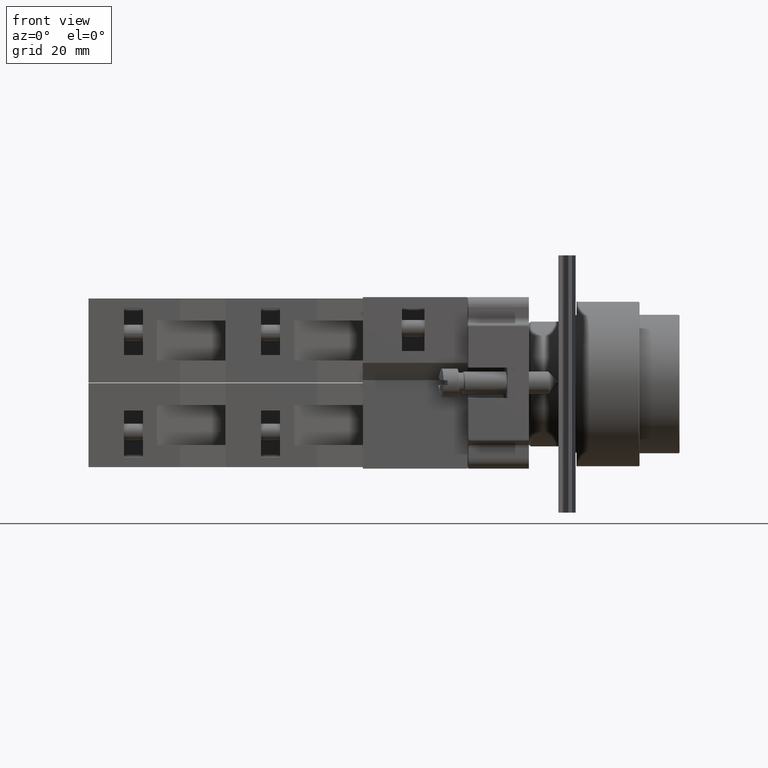
[diagram: clean part render]
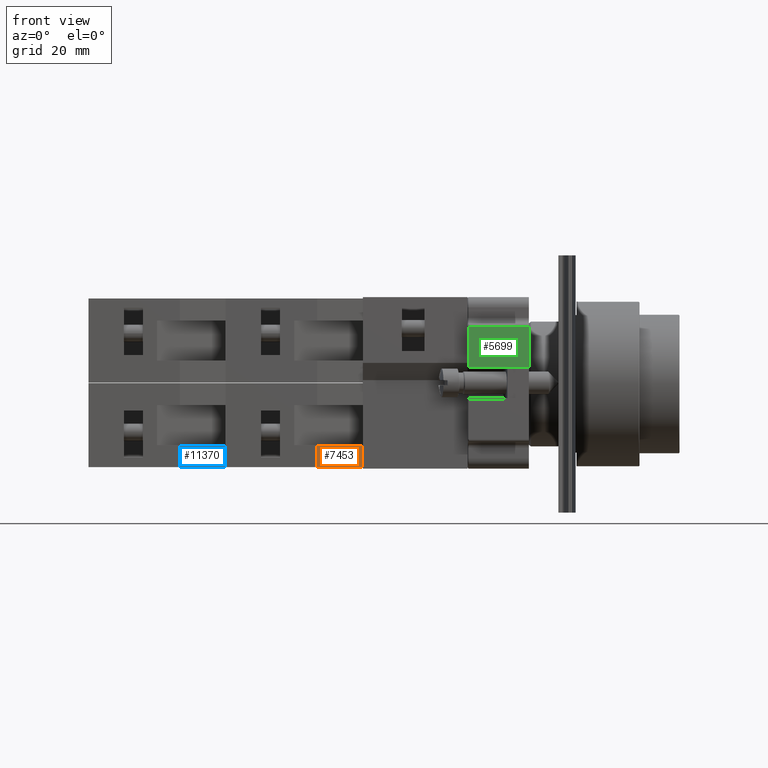
[diagram: same view with three faces highlighted in distinct colors, each labeled with its STEP entity id]
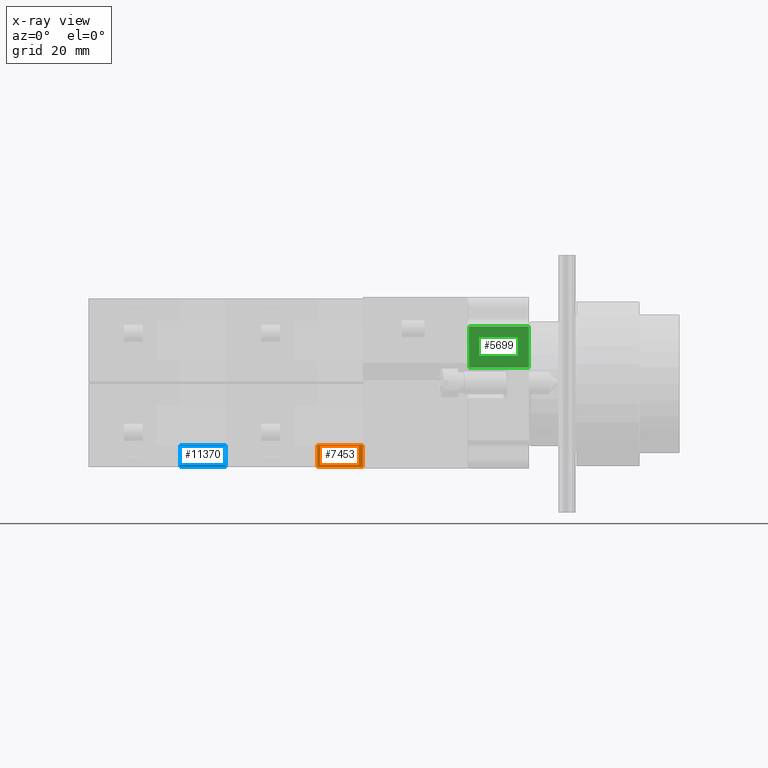
[diagram: x-ray of the same camera — body ghosted, the three highlighted faces saturated]
A machine part, front view with three faces highlighted in distinct colors.
The next image is the same camera in x-ray (body ghosted, the three faces saturated) — at least one of them is partly hidden behind the body in this view.
Their STEP definitions:

[orange] entity #7453 — the highlighted planar face has unit normal (0.1843, -0.9829, 0).
#7215=CARTESIAN_POINT('',(-17.436741828918457,-0.202926676720378,10.850000000000000));
#7216=VERTEX_POINT('',#7215);
#7217=CARTESIAN_POINT('',(-15.936741828918466,7.797073323279626,10.850000000000000));
#7218=VERTEX_POINT('',#7217);
#7219=CARTESIAN_POINT('',(-17.436741828918457,-0.202926676720378,10.850000000000000));
#7220=DIRECTION('',(0.184288535050184,0.982872186934322,0.0));
#7221=VECTOR('',#7220,8.139410298049855);
#7222=LINE('',#7219,#7221);
#7223=EDGE_CURVE('',#7216,#7218,#7222,.T.);
#7343=CARTESIAN_POINT('',(-17.436741828918457,-0.202926676720377,14.699999999999999));
#7344=VERTEX_POINT('',#7343);
#7345=CARTESIAN_POINT('',(-17.436741828918457,-0.202926676720378,10.850000000000000));
#7346=DIRECTION('',(0.0,0.0,1.0));
#7347=VECTOR('',#7346,3.850000000000000);
#7348=LINE('',#7345,#7347);
#7349=EDGE_CURVE('',#7216,#7344,#7348,.T.);
#7430=CARTESIAN_POINT('',(-15.936741828918466,7.797073323279626,0.0));
#7431=DIRECTION('',(0.982872186934322,-0.184288535050184,0.0));
#7432=DIRECTION('',(0.0,0.0,-1.0));
#7433=AXIS2_PLACEMENT_3D('',#7430,#7431,#7432);
#7434=PLANE('',#7433);
#7435=ORIENTED_EDGE('',*,*,#7223,.T.);
#7436=CARTESIAN_POINT('',(-15.936741828918466,7.797073323279626,14.699999999999999));
#7437=VERTEX_POINT('',#7436);
#7438=CARTESIAN_POINT('',(-15.936741828918466,7.797073323279626,10.850000000000000));
#7439=DIRECTION('',(0.0,0.0,1.0));
#7440=VECTOR('',#7439,3.850000000000000);
#7441=LINE('',#7438,#7440);
#7442=EDGE_CURVE('',#7218,#7437,#7441,.T.);
#7443=ORIENTED_EDGE('',*,*,#7442,.T.);
#7444=CARTESIAN_POINT('',(-15.936741828918466,7.797073323279626,14.699999999999999));
#7445=DIRECTION('',(-0.184288535050184,-0.982872186934322,0.0));
#7446=VECTOR('',#7445,8.139410298049855);
#7447=LINE('',#7444,#7446);
#7448=EDGE_CURVE('',#7437,#7344,#7447,.T.);
#7449=ORIENTED_EDGE('',*,*,#7448,.T.);
#7450=ORIENTED_EDGE('',*,*,#7349,.F.);
#7451=EDGE_LOOP('',(#7435,#7443,#7449,#7450));
#7452=FACE_OUTER_BOUND('',#7451,.T.);
#7453=ADVANCED_FACE('',(#7452),#7434,.T.);

[blue] entity #11370 — the highlighted planar face has unit normal (0.1843, -0.9829, -0).
#11132=CARTESIAN_POINT('',(-17.436741828918457,-0.202926676720378,10.850000000000000));
#11133=VERTEX_POINT('',#11132);
#11134=CARTESIAN_POINT('',(-15.936741828918466,7.797073323279626,10.850000000000000));
#11135=VERTEX_POINT('',#11134);
#11136=CARTESIAN_POINT('',(-17.436741828918457,-0.202926676720378,10.850000000000000));
#11137=DIRECTION('',(0.184288535050184,0.982872186934322,0.0));
#11138=VECTOR('',#11137,8.139410298049855);
#11139=LINE('',#11136,#11138);
#11140=EDGE_CURVE('',#11133,#11135,#11139,.T.);
#11260=CARTESIAN_POINT('',(-17.436741828918457,-0.202926676720377,14.699999999999999));
#11261=VERTEX_POINT('',#11260);
#11262=CARTESIAN_POINT('',(-17.436741828918457,-0.202926676720378,10.850000000000000));
#11263=DIRECTION('',(0.0,0.0,1.0));
#11264=VECTOR('',#11263,3.850000000000000);
#11265=LINE('',#11262,#11264);
#11266=EDGE_CURVE('',#11133,#11261,#11265,.T.);
#11347=CARTESIAN_POINT('',(-15.936741828918466,7.797073323279626,0.0));
#11348=DIRECTION('',(0.982872186934322,-0.184288535050184,0.0));
#11349=DIRECTION('',(0.0,0.0,-1.0));
#11350=AXIS2_PLACEMENT_3D('',#11347,#11348,#11349);
#11351=PLANE('',#11350);
#11352=ORIENTED_EDGE('',*,*,#11140,.T.);
#11353=CARTESIAN_POINT('',(-15.936741828918466,7.797073323279626,14.699999999999999));
#11354=VERTEX_POINT('',#11353);
#11355=CARTESIAN_POINT('',(-15.936741828918466,7.797073323279626,10.850000000000000));
#11356=DIRECTION('',(0.0,0.0,1.0));
#11357=VECTOR('',#11356,3.850000000000000);
#11358=LINE('',#11355,#11357);
#11359=EDGE_CURVE('',#11135,#11354,#11358,.T.);
#11360=ORIENTED_EDGE('',*,*,#11359,.T.);
#11361=CARTESIAN_POINT('',(-15.936741828918466,7.797073323279626,14.699999999999999));
#11362=DIRECTION('',(-0.184288535050184,-0.982872186934322,0.0));
#11363=VECTOR('',#11362,8.139410298049855);
#11364=LINE('',#11361,#11363);
#11365=EDGE_CURVE('',#11354,#11261,#11364,.T.);
#11366=ORIENTED_EDGE('',*,*,#11365,.T.);
#11367=ORIENTED_EDGE('',*,*,#11266,.F.);
#11368=EDGE_LOOP('',(#11352,#11360,#11366,#11367));
#11369=FACE_OUTER_BOUND('',#11368,.T.);
#11370=ADVANCED_FACE('',(#11369),#11351,.T.);

[green] entity #5699 — the highlighted planar face has unit normal (0, -1, -0).
#673=CARTESIAN_POINT('',(-18.982780308276109,0.267864828157553,10.500000000000000));
#674=VERTEX_POINT('',#673);
#727=CARTESIAN_POINT('',(-18.982780308276109,7.467864828157554,10.500000000000000));
#728=VERTEX_POINT('',#727);
#729=CARTESIAN_POINT('',(-18.982780308276109,7.467864828157554,10.500000000000000));
#730=DIRECTION('',(0.0,-1.0,0.0));
#731=VECTOR('',#730,7.200000000000001);
#732=LINE('',#729,#731);
#733=EDGE_CURVE('',#728,#674,#732,.T.);
#4203=CARTESIAN_POINT('',(-18.982780308276109,0.267864828157553,0.0));
#4204=VERTEX_POINT('',#4203);
#4212=CARTESIAN_POINT('',(-18.982780308276109,7.467864828157554,0.0));
#4213=VERTEX_POINT('',#4212);
#4214=CARTESIAN_POINT('',(-18.982780308276109,7.467864828157554,0.0));
#4215=DIRECTION('',(0.0,-1.0,0.0));
#4216=VECTOR('',#4215,7.200000000000001);
#4217=LINE('',#4214,#4216);
#4218=EDGE_CURVE('',#4213,#4204,#4217,.T.);
#5672=CARTESIAN_POINT('',(-18.982780308276109,0.267864828157553,0.0));
#5673=DIRECTION('',(0.0,0.0,1.0));
#5674=VECTOR('',#5673,10.500000000000000);
#5675=LINE('',#5672,#5674);
#5676=EDGE_CURVE('',#4204,#674,#5675,.T.);
#5683=CARTESIAN_POINT('',(-18.982780308276109,0.267864828157553,0.0));
#5684=DIRECTION('',(-1.0,0.0,0.0));
#5685=DIRECTION('',(0.0,0.0,1.0));
#5686=AXIS2_PLACEMENT_3D('',#5683,#5684,#5685);
#5687=PLANE('',#5686);
#5688=ORIENTED_EDGE('',*,*,#733,.F.);
#5689=CARTESIAN_POINT('',(-18.982780308276109,7.467864828157554,0.0));
#5690=DIRECTION('',(0.0,0.0,1.0));
#5691=VECTOR('',#5690,10.500000000000000);
#5692=LINE('',#5689,#5691);
#5693=EDGE_CURVE('',#4213,#728,#5692,.T.);
#5694=ORIENTED_EDGE('',*,*,#5693,.F.);
#5695=ORIENTED_EDGE('',*,*,#4218,.T.);
#5696=ORIENTED_EDGE('',*,*,#5676,.T.);
#5697=EDGE_LOOP('',(#5688,#5694,#5695,#5696));
#5698=FACE_OUTER_BOUND('',#5697,.T.);
#5699=ADVANCED_FACE('',(#5698),#5687,.T.);